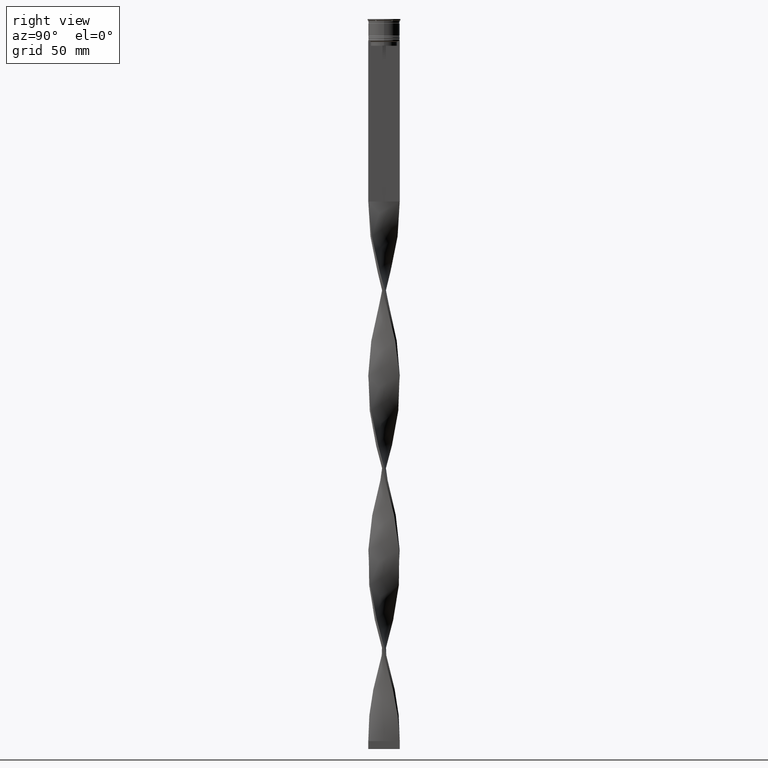
[diagram: clean part render]
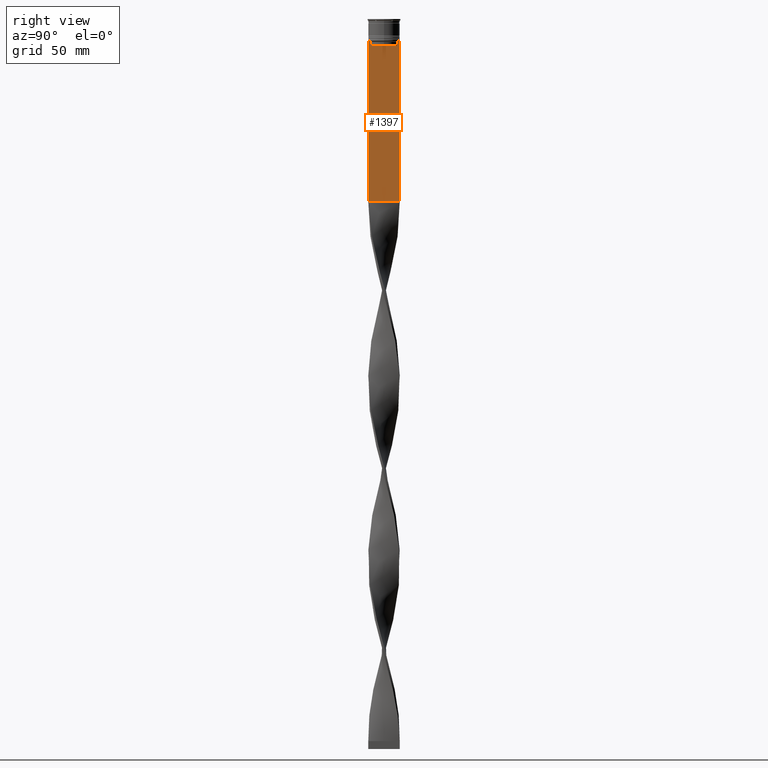
[diagram: same view with one face highlighted and labeled with its STEP entity id]
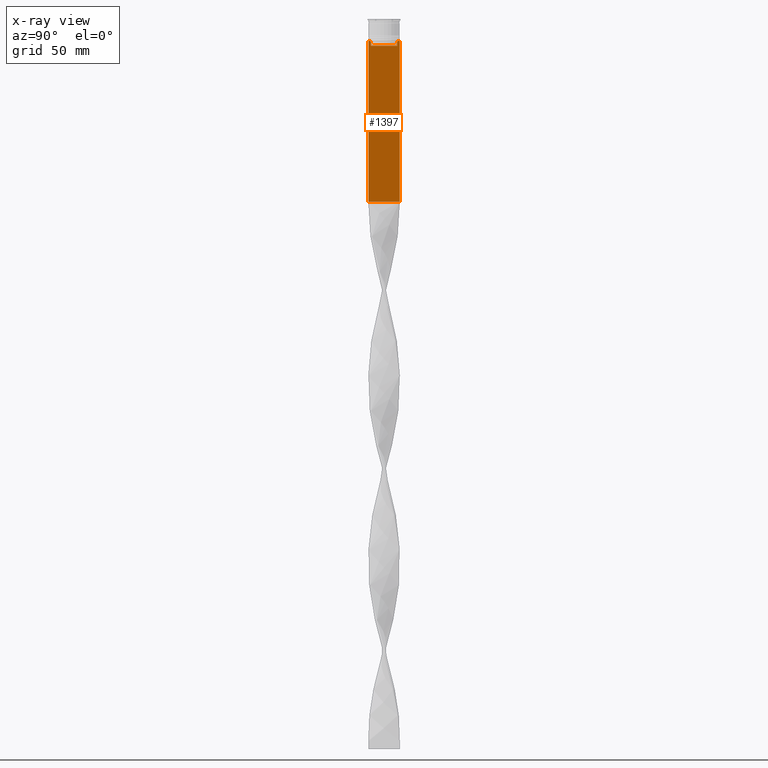
[diagram: x-ray of the same camera — body ghosted, the highlighted face saturated]
A machine part, right view. The second image highlights one B-rep face of the part: STEP entity #1397.
The next image is the same camera in x-ray: the body ghosted, the highlighted face saturated — about 0% of this face is hidden behind the body in this view.
In plain terms, the highlighted planar face has unit normal (-1, 0, 0).
Its self-contained STEP definition (entity closure, byte-faithful):
#46 = CARTESIAN_POINT ( 'NONE',  ( 0.7500000000000001110, -10.00000000000000533, -116.0000000000000000 ) ) ;
#262 = LINE ( 'NONE', #610, #2974 ) ;
#299 = CARTESIAN_POINT ( 'NONE',  ( 0.7500000000000001110, -8.701063080777121428, -14.16668447713511725 ) ) ;
#309 = DIRECTION ( 'NONE',  ( 0.000000000000000000, 0.000000000000000000, -1.000000000000000000 ) ) ;
#320 = CARTESIAN_POINT ( 'NONE',  ( 0.7500000000000001110, -8.533766903463440912, -14.33335220807192023 ) ) ;
#330 = B_SPLINE_CURVE_WITH_KNOTS ( 'NONE', 3,
 ( #1052, #650, #3437, #980 ),
 .UNSPECIFIED., .F., .F.,
 ( 4, 4 ),
 ( 0.01512225952876174867, 0.01583070519299695222 ),
 .UNSPECIFIED. ) ;
#370 = EDGE_CURVE ( 'NONE', #927, #4020, #1409, .T. ) ;
#519 = LINE ( 'NONE', #2580, #2827 ) ;
#574 = ORIENTED_EDGE ( 'NONE', *, *, #2210, .T. ) ;
#610 = CARTESIAN_POINT ( 'NONE',  ( 0.7500000000000001110, 8.366450860430608927, 0.000000000000000000 ) ) ;
#650 = CARTESIAN_POINT ( 'NONE',  ( 0.7500000000000001110, 8.701063075415250481, -14.16668448247791545 ) ) ;
#717 = CARTESIAN_POINT ( 'NONE',  ( 0.7500000000000001110, -10.00000000000000533, -116.0000000000000000 ) ) ;
#743 = VERTEX_POINT ( 'NONE', #3445 ) ;
#781 = LINE ( 'NONE', #2105, #1276 ) ;
#927 = VERTEX_POINT ( 'NONE', #2142 ) ;
#980 = CARTESIAN_POINT ( 'NONE',  ( 0.7500000000000001110, 8.366450860430608927, -14.50000000000000000 ) ) ;
#1002 = ORIENTED_EDGE ( 'NONE', *, *, #3424, .T. ) ;
#1017 = VECTOR ( 'NONE', #2602, 1000.000000000000000 ) ;
#1052 = CARTESIAN_POINT ( 'NONE',  ( 0.7500000000000001110, 8.868342573446296839, -14.00000000000000178 ) ) ;
#1094 = ORIENTED_EDGE ( 'NONE', *, *, #370, .F. ) ;
#1154 = CARTESIAN_POINT ( 'NONE',  ( 0.7500000000000001110, -10.00000000000000533, -14.00000000000000178 ) ) ;
#1276 = VECTOR ( 'NONE', #1776, 1000.000000000000000 ) ;
#1394 = CARTESIAN_POINT ( 'NONE',  ( 0.7500000000000001110, -8.366450860430608927, -14.50000000000000000 ) ) ;
#1395 = ORIENTED_EDGE ( 'NONE', *, *, #3638, .T. ) ;
#1397 = ADVANCED_FACE ( 'NONE', ( #1868 ), #3613, .F. ) ;
#1409 = LINE ( 'NONE', #2768, #2834 ) ;
#1442 = LINE ( 'NONE', #3851, #3255 ) ;
#1500 = EDGE_CURVE ( 'NONE', #3404, #3076, #2507, .T. ) ;
#1603 = ORIENTED_EDGE ( 'NONE', *, *, #2272, .T. ) ;
#1776 = DIRECTION ( 'NONE',  ( 0.000000000000000000, 0.000000000000000000, -1.000000000000000000 ) ) ;
#1868 = FACE_OUTER_BOUND ( 'NONE', #3451, .T. ) ;
#1915 = CARTESIAN_POINT ( 'NONE',  ( 0.7500000000000001110, -10.00000000000000533, 6.056171120131581098 ) ) ;
#1936 = DIRECTION ( 'NONE',  ( 0.000000000000000000, 0.000000000000000000, 1.000000000000000000 ) ) ;
#1971 = VERTEX_POINT ( 'NONE', #3628 ) ;
#1974 = ORIENTED_EDGE ( 'NONE', *, *, #1500, .T. ) ;
#1981 = VECTOR ( 'NONE', #2166, 1000.000000000000000 ) ;
#2002 = VERTEX_POINT ( 'NONE', #3989 ) ;
#2077 = EDGE_CURVE ( 'NONE', #3727, #3558, #4365, .T. ) ;
#2105 = CARTESIAN_POINT ( 'NONE',  ( 0.7500000000000001110, -10.00000000000000533, 6.056171120131581098 ) ) ;
#2142 = CARTESIAN_POINT ( 'NONE',  ( 0.7500000000000001110, 9.999999999999998224, -14.00000000000000178 ) ) ;
#2166 = DIRECTION ( 'NONE',  ( 0.000000000000000000, -1.000000000000000000, 0.000000000000000000 ) ) ;
#2210 = EDGE_CURVE ( 'NONE', #927, #3727, #2397, .T. ) ;
#2224 = LINE ( 'NONE', #3229, #3980 ) ;
#2243 = CARTESIAN_POINT ( 'NONE',  ( 0.7500000000000001110, 8.366450860430608927, -17.00000000000000000 ) ) ;
#2272 = EDGE_CURVE ( 'NONE', #4324, #4020, #3039, .T. ) ;
#2317 = ORIENTED_EDGE ( 'NONE', *, *, #2077, .T. ) ;
#2324 = CARTESIAN_POINT ( 'NONE',  ( 0.7500000000000001110, -8.868342573446296839, -14.00000000000000178 ) ) ;
#2346 = CARTESIAN_POINT ( 'NONE',  ( 0.7500000000000001110, -8.868342573446296839, -14.00000000000000178 ) ) ;
#2397 = LINE ( 'NONE', #3742, #3216 ) ;
#2444 = CARTESIAN_POINT ( 'NONE',  ( 0.7500000000000001110, -8.366450860430608927, -14.50000000000000000 ) ) ;
#2487 = DIRECTION ( 'NONE',  ( 0.000000000000000000, -1.000000000000000000, 0.000000000000000000 ) ) ;
#2506 = CARTESIAN_POINT ( 'NONE',  ( 0.7500000000000002220, 9.999999999999998224, -116.0000000000000000 ) ) ;
#2507 = B_SPLINE_CURVE_WITH_KNOTS ( 'NONE', 3,
 ( #2444, #320, #299, #2324 ),
 .UNSPECIFIED., .F., .F.,
 ( 4, 4 ),
 ( 0.03866293624047253963, 0.03937282246709320616 ),
 .UNSPECIFIED. ) ;
#2539 = CARTESIAN_POINT ( 'NONE',  ( 0.7500000000000001110, -9.871550030263739117, -14.00000000000000178 ) ) ;
#2554 = CARTESIAN_POINT ( 'NONE',  ( 0.7500000000000001110, 9.871550030263739117, -14.00000000000000178 ) ) ;
#2577 = ORIENTED_EDGE ( 'NONE', *, *, #3491, .T. ) ;
#2580 = CARTESIAN_POINT ( 'NONE',  ( 0.7500000000000001110, -8.366450860430608927, 0.000000000000000000 ) ) ;
#2599 = LINE ( 'NONE', #1154, #1981 ) ;
#2602 = DIRECTION ( 'NONE',  ( 0.000000000000000000, -1.000000000000000000, 0.000000000000000000 ) ) ;
#2671 = VERTEX_POINT ( 'NONE', #2539 ) ;
#2757 = ORIENTED_EDGE ( 'NONE', *, *, #4184, .T. ) ;
#2768 = CARTESIAN_POINT ( 'NONE',  ( 0.7500000000000001110, 9.999999999999998224, 6.056171120131581098 ) ) ;
#2827 = VECTOR ( 'NONE', #3914, 1000.000000000000000 ) ;
#2834 = VECTOR ( 'NONE', #3801, 1000.000000000000000 ) ;
#2974 = VECTOR ( 'NONE', #309, 1000.000000000000000 ) ;
#3039 = LINE ( 'NONE', #46, #4158 ) ;
#3062 = EDGE_CURVE ( 'NONE', #3558, #743, #330, .T. ) ;
#3076 = VERTEX_POINT ( 'NONE', #2346 ) ;
#3169 = EDGE_CURVE ( 'NONE', #3659, #2002, #2224, .T. ) ;
#3216 = VECTOR ( 'NONE', #3806, 1000.000000000000000 ) ;
#3229 = CARTESIAN_POINT ( 'NONE',  ( 0.7500000000000001110, 8.400000000000003908, -17.00000000000000000 ) ) ;
#3255 = VECTOR ( 'NONE', #2487, 1000.000000000000000 ) ;
#3377 = DIRECTION ( 'NONE',  ( 0.000000000000000000, 1.000000000000000000, 0.000000000000000000 ) ) ;
#3404 = VERTEX_POINT ( 'NONE', #1394 ) ;
#3424 = EDGE_CURVE ( 'NONE', #2671, #1971, #1442, .T. ) ;
#3437 = CARTESIAN_POINT ( 'NONE',  ( 0.7500000000000001110, 8.533766897779925031, -14.33335221373273605 ) ) ;
#3445 = CARTESIAN_POINT ( 'NONE',  ( 0.7500000000000001110, 8.366450860430608927, -14.50000000000000000 ) ) ;
#3451 = EDGE_LOOP ( 'NONE', ( #2317, #3680, #2757, #3584, #1395, #1974, #4371, #1002, #2577, #1603, #1094, #574 ) ) ;
#3491 = EDGE_CURVE ( 'NONE', #1971, #4324, #781, .T. ) ;
#3558 = VERTEX_POINT ( 'NONE', #3766 ) ;
#3584 = ORIENTED_EDGE ( 'NONE', *, *, #3169, .T. ) ;
#3604 = DIRECTION ( 'NONE',  ( 0.000000000000000000, -1.000000000000000000, 0.000000000000000000 ) ) ;
#3613 = PLANE ( 'NONE',  #4373 ) ;
#3628 = CARTESIAN_POINT ( 'NONE',  ( 0.7500000000000001110, -10.00000000000000533, -14.00000000000000178 ) ) ;
#3638 = EDGE_CURVE ( 'NONE', #2002, #3404, #519, .T. ) ;
#3659 = VERTEX_POINT ( 'NONE', #2243 ) ;
#3680 = ORIENTED_EDGE ( 'NONE', *, *, #3062, .T. ) ;
#3727 = VERTEX_POINT ( 'NONE', #2554 ) ;
#3742 = CARTESIAN_POINT ( 'NONE',  ( 0.7500000000000001110, -10.00000000000000533, -14.00000000000000178 ) ) ;
#3766 = CARTESIAN_POINT ( 'NONE',  ( 0.7500000000000001110, 8.868342573446296839, -14.00000000000000178 ) ) ;
#3801 = DIRECTION ( 'NONE',  ( 0.000000000000000000, 0.000000000000000000, -1.000000000000000000 ) ) ;
#3806 = DIRECTION ( 'NONE',  ( 0.000000000000000000, -1.000000000000000000, 0.000000000000000000 ) ) ;
#3851 = CARTESIAN_POINT ( 'NONE',  ( 0.7500000000000001110, -10.00000000000000533, -14.00000000000000178 ) ) ;
#3914 = DIRECTION ( 'NONE',  ( -0.000000000000000000, -0.000000000000000000, 1.000000000000000000 ) ) ;
#3958 = EDGE_CURVE ( 'NONE', #3076, #2671, #2599, .T. ) ;
#3980 = VECTOR ( 'NONE', #3604, 1000.000000000000000 ) ;
#3989 = CARTESIAN_POINT ( 'NONE',  ( 0.7500000000000001110, -8.366450860430608927, -17.00000000000000000 ) ) ;
#4020 = VERTEX_POINT ( 'NONE', #2506 ) ;
#4158 = VECTOR ( 'NONE', #3377, 1000.000000000000000 ) ;
#4184 = EDGE_CURVE ( 'NONE', #743, #3659, #262, .T. ) ;
#4315 = CARTESIAN_POINT ( 'NONE',  ( 0.7500000000000001110, -10.00000000000000533, -14.00000000000000178 ) ) ;
#4324 = VERTEX_POINT ( 'NONE', #717 ) ;
#4348 = DIRECTION ( 'NONE',  ( -1.000000000000000000, 0.000000000000000000, 0.000000000000000000 ) ) ;
#4365 = LINE ( 'NONE', #4315, #1017 ) ;
#4371 = ORIENTED_EDGE ( 'NONE', *, *, #3958, .T. ) ;
#4373 = AXIS2_PLACEMENT_3D ( 'NONE', #1915, #4348, #1936 ) ;